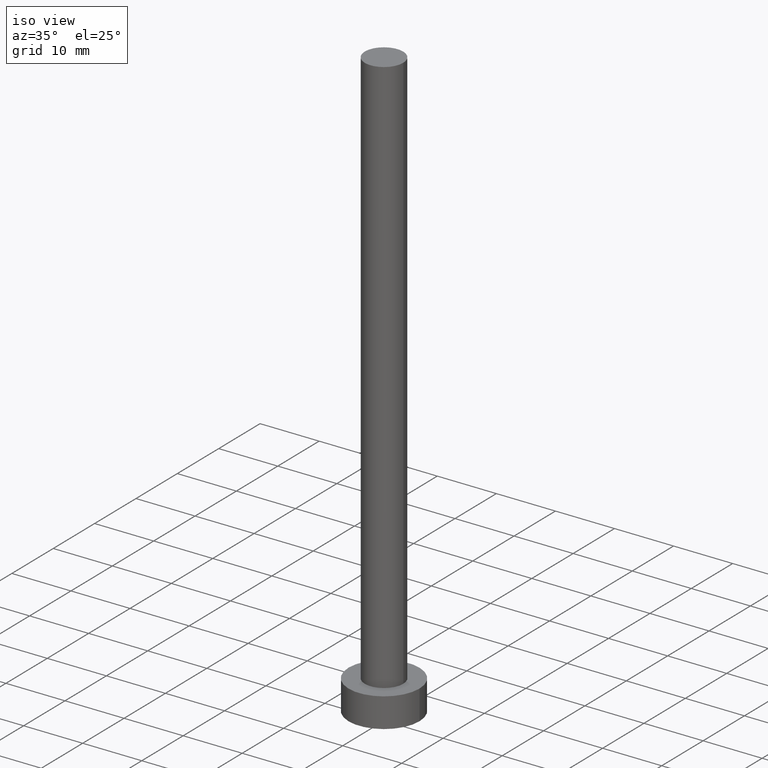
[diagram: clean part render]
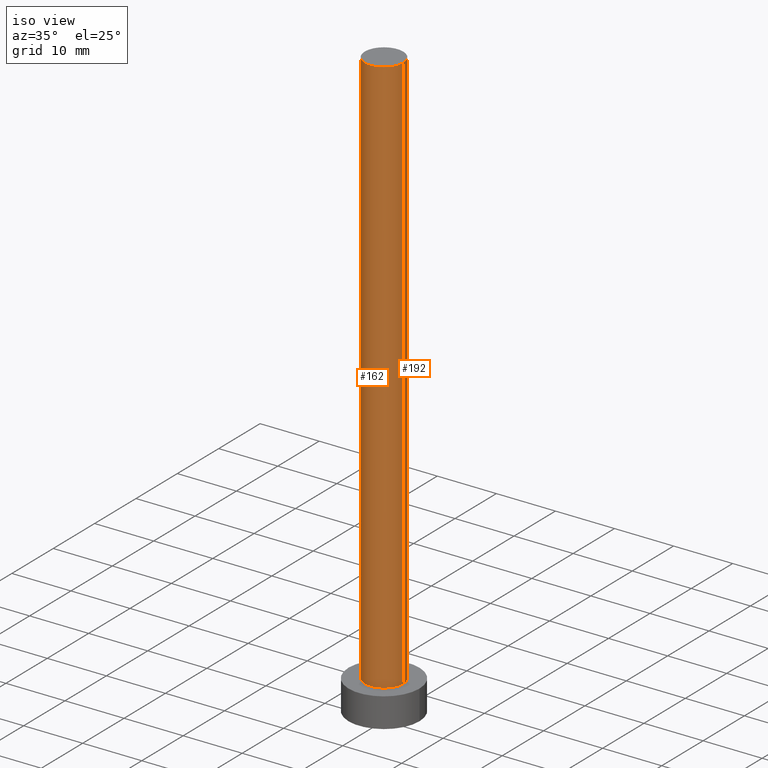
[diagram: same view with one multi-face feature highlighted, each face labeled with its STEP entity id]
A machine part, iso view. The highlighted faces form ONE feature: a constant-radius fillet chain: 2 tangent blend faces with common blend radius 3.25 mm. The faces share edges in the B-rep.
Their STEP definitions:
[1] entity #162 (Cylinder):
#15 = VERTEX_POINT ( 'NONE', #46 ) ;
#20 = DIRECTION ( 'NONE',  ( 1.000000000000000000, 0.000000000000000000, 0.000000000000000000 ) ) ;
#25 = VERTEX_POINT ( 'NONE', #252 ) ;
#26 = CARTESIAN_POINT ( 'NONE',  ( 3.250000000000000444, 3.980102097228898231E-16, 5.000000000000000000 ) ) ;
#44 = EDGE_LOOP ( 'NONE', ( #209, #225, #168, #170 ) ) ;
#46 = CARTESIAN_POINT ( 'NONE',  ( -3.250000000000000444, 0.000000000000000000, 100.0000000000000000 ) ) ;
#47 = CARTESIAN_POINT ( 'NONE',  ( -3.250000000000000444, 0.000000000000000000, 5.000000000000000000 ) ) ;
#52 = CIRCLE ( 'NONE', #229, 3.250000000000000444 ) ;
#54 = CARTESIAN_POINT ( 'NONE',  ( -3.250000000000000444, 0.000000000000000000, 100.0000000000000000 ) ) ;
#58 = DIRECTION ( 'NONE',  ( -1.000000000000000000, 0.000000000000000000, 0.000000000000000000 ) ) ;
#65 = AXIS2_PLACEMENT_3D ( 'NONE', #201, #102, #179 ) ;
#73 = EDGE_CURVE ( 'NONE', #15, #25, #242, .T. ) ;
#83 = LINE ( 'NONE', #105, #180 ) ;
#93 = VERTEX_POINT ( 'NONE', #26 ) ;
#102 = DIRECTION ( 'NONE',  ( 0.000000000000000000, 0.000000000000000000, 1.000000000000000000 ) ) ;
#105 = CARTESIAN_POINT ( 'NONE',  ( 3.250000000000000444, 3.980102097228898231E-16, 100.0000000000000000 ) ) ;
#106 = CARTESIAN_POINT ( 'NONE',  ( 0.000000000000000000, 0.000000000000000000, 100.0000000000000000 ) ) ;
#120 = AXIS2_PLACEMENT_3D ( 'NONE', #106, #200, #58 ) ;
#129 = VECTOR ( 'NONE', #141, 1000.000000000000000 ) ;
#141 = DIRECTION ( 'NONE',  ( -0.000000000000000000, -0.000000000000000000, -1.000000000000000000 ) ) ;
#143 = EDGE_CURVE ( 'NONE', #25, #93, #83, .T. ) ;
#144 = DIRECTION ( 'NONE',  ( 0.000000000000000000, 0.000000000000000000, 1.000000000000000000 ) ) ;
#147 = FACE_OUTER_BOUND ( 'NONE', #44, .T. ) ;
#162 = ADVANCED_FACE ( 'NONE', ( #147 ), #241, .T. ) ;
#165 = DIRECTION ( 'NONE',  ( -0.000000000000000000, -0.000000000000000000, -1.000000000000000000 ) ) ;
#168 = ORIENTED_EDGE ( 'NONE', *, *, #216, .T. ) ;
#170 = ORIENTED_EDGE ( 'NONE', *, *, #178, .T. ) ;
#178 = EDGE_CURVE ( 'NONE', #223, #93, #52, .T. ) ;
#179 = DIRECTION ( 'NONE',  ( 1.000000000000000000, 0.000000000000000000, 0.000000000000000000 ) ) ;
#180 = VECTOR ( 'NONE', #165, 1000.000000000000000 ) ;
#200 = DIRECTION ( 'NONE',  ( -0.000000000000000000, -0.000000000000000000, -1.000000000000000000 ) ) ;
#201 = CARTESIAN_POINT ( 'NONE',  ( 0.000000000000000000, 0.000000000000000000, 100.0000000000000000 ) ) ;
#203 = CARTESIAN_POINT ( 'NONE',  ( 0.000000000000000000, 0.000000000000000000, 5.000000000000000000 ) ) ;
#209 = ORIENTED_EDGE ( 'NONE', *, *, #143, .F. ) ;
#216 = EDGE_CURVE ( 'NONE', #15, #223, #237, .T. ) ;
#223 = VERTEX_POINT ( 'NONE', #47 ) ;
#225 = ORIENTED_EDGE ( 'NONE', *, *, #73, .F. ) ;
#229 = AXIS2_PLACEMENT_3D ( 'NONE', #203, #144, #20 ) ;
#237 = LINE ( 'NONE', #54, #129 ) ;
#241 = CYLINDRICAL_SURFACE ( 'NONE', #120, 3.250000000000000444 ) ;
#242 = CIRCLE ( 'NONE', #65, 3.250000000000000444 ) ;
#252 = CARTESIAN_POINT ( 'NONE',  ( 3.250000000000000444, 3.980102097228898231E-16, 100.0000000000000000 ) ) ;
[2] entity #192 (Cylinder):
#4 = CYLINDRICAL_SURFACE ( 'NONE', #16, 3.250000000000000444 ) ;
#7 = AXIS2_PLACEMENT_3D ( 'NONE', #22, #81, #126 ) ;
#12 = DIRECTION ( 'NONE',  ( 1.000000000000000000, 0.000000000000000000, 0.000000000000000000 ) ) ;
#15 = VERTEX_POINT ( 'NONE', #46 ) ;
#16 = AXIS2_PLACEMENT_3D ( 'NONE', #244, #61, #34 ) ;
#22 = CARTESIAN_POINT ( 'NONE',  ( 0.000000000000000000, 0.000000000000000000, 5.000000000000000000 ) ) ;
#23 = ORIENTED_EDGE ( 'NONE', *, *, #212, .T. ) ;
#25 = VERTEX_POINT ( 'NONE', #252 ) ;
#26 = CARTESIAN_POINT ( 'NONE',  ( 3.250000000000000444, 3.980102097228898231E-16, 5.000000000000000000 ) ) ;
#34 = DIRECTION ( 'NONE',  ( -1.000000000000000000, 0.000000000000000000, 0.000000000000000000 ) ) ;
#45 = ORIENTED_EDGE ( 'NONE', *, *, #143, .T. ) ;
#46 = CARTESIAN_POINT ( 'NONE',  ( -3.250000000000000444, 0.000000000000000000, 100.0000000000000000 ) ) ;
#47 = CARTESIAN_POINT ( 'NONE',  ( -3.250000000000000444, 0.000000000000000000, 5.000000000000000000 ) ) ;
#54 = CARTESIAN_POINT ( 'NONE',  ( -3.250000000000000444, 0.000000000000000000, 100.0000000000000000 ) ) ;
#61 = DIRECTION ( 'NONE',  ( -0.000000000000000000, -0.000000000000000000, -1.000000000000000000 ) ) ;
#81 = DIRECTION ( 'NONE',  ( 0.000000000000000000, 0.000000000000000000, 1.000000000000000000 ) ) ;
#83 = LINE ( 'NONE', #105, #180 ) ;
#87 = EDGE_LOOP ( 'NONE', ( #191, #45, #23, #112 ) ) ;
#91 = AXIS2_PLACEMENT_3D ( 'NONE', #184, #113, #12 ) ;
#93 = VERTEX_POINT ( 'NONE', #26 ) ;
#98 = EDGE_CURVE ( 'NONE', #25, #15, #171, .T. ) ;
#105 = CARTESIAN_POINT ( 'NONE',  ( 3.250000000000000444, 3.980102097228898231E-16, 100.0000000000000000 ) ) ;
#107 = CIRCLE ( 'NONE', #7, 3.250000000000000444 ) ;
#112 = ORIENTED_EDGE ( 'NONE', *, *, #216, .F. ) ;
#113 = DIRECTION ( 'NONE',  ( 0.000000000000000000, 0.000000000000000000, 1.000000000000000000 ) ) ;
#126 = DIRECTION ( 'NONE',  ( 1.000000000000000000, 0.000000000000000000, 0.000000000000000000 ) ) ;
#129 = VECTOR ( 'NONE', #141, 1000.000000000000000 ) ;
#141 = DIRECTION ( 'NONE',  ( -0.000000000000000000, -0.000000000000000000, -1.000000000000000000 ) ) ;
#143 = EDGE_CURVE ( 'NONE', #25, #93, #83, .T. ) ;
#165 = DIRECTION ( 'NONE',  ( -0.000000000000000000, -0.000000000000000000, -1.000000000000000000 ) ) ;
#171 = CIRCLE ( 'NONE', #91, 3.250000000000000444 ) ;
#180 = VECTOR ( 'NONE', #165, 1000.000000000000000 ) ;
#183 = FACE_OUTER_BOUND ( 'NONE', #87, .T. ) ;
#184 = CARTESIAN_POINT ( 'NONE',  ( 0.000000000000000000, 0.000000000000000000, 100.0000000000000000 ) ) ;
#191 = ORIENTED_EDGE ( 'NONE', *, *, #98, .F. ) ;
#192 = ADVANCED_FACE ( 'NONE', ( #183 ), #4, .T. ) ;
#212 = EDGE_CURVE ( 'NONE', #93, #223, #107, .T. ) ;
#216 = EDGE_CURVE ( 'NONE', #15, #223, #237, .T. ) ;
#223 = VERTEX_POINT ( 'NONE', #47 ) ;
#237 = LINE ( 'NONE', #54, #129 ) ;
#244 = CARTESIAN_POINT ( 'NONE',  ( 0.000000000000000000, 0.000000000000000000, 100.0000000000000000 ) ) ;
#252 = CARTESIAN_POINT ( 'NONE',  ( 3.250000000000000444, 3.980102097228898231E-16, 100.0000000000000000 ) ) ;